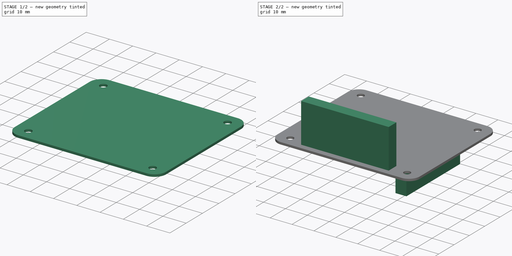
[diagram: build sequence overview — one tinted view per stage of 2, left to right]
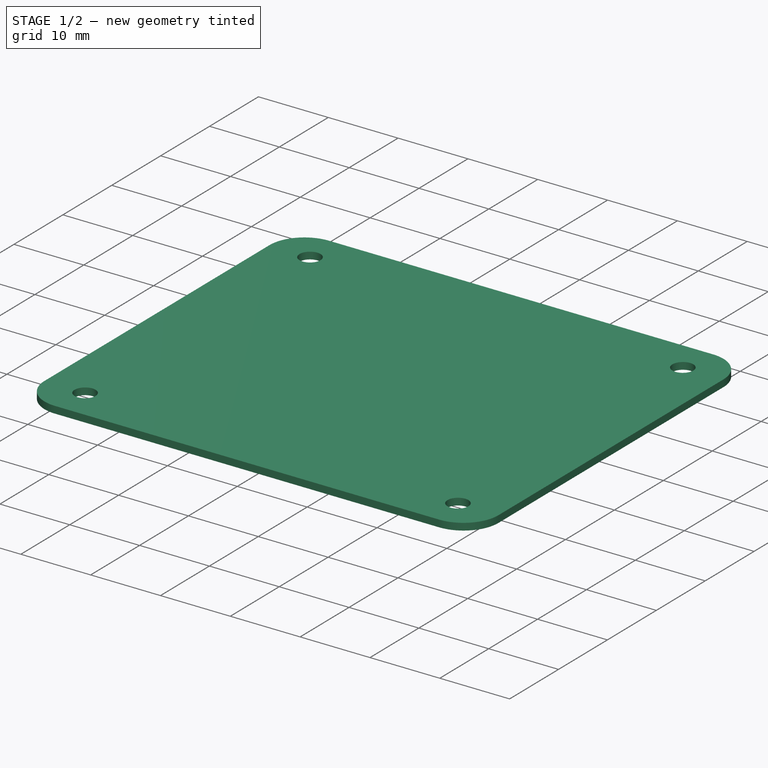
[diagram: stage 1 of 2 — iso view after this stage's code; geometry added in this stage tinted green]
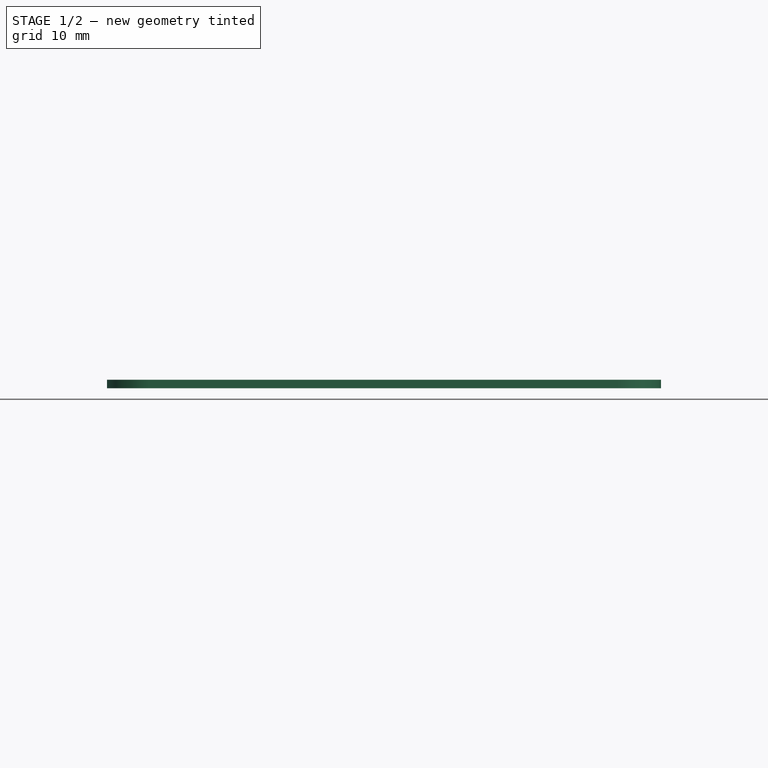
[diagram: stage 1 of 2 — front view after this stage's code; geometry added in this stage tinted green]
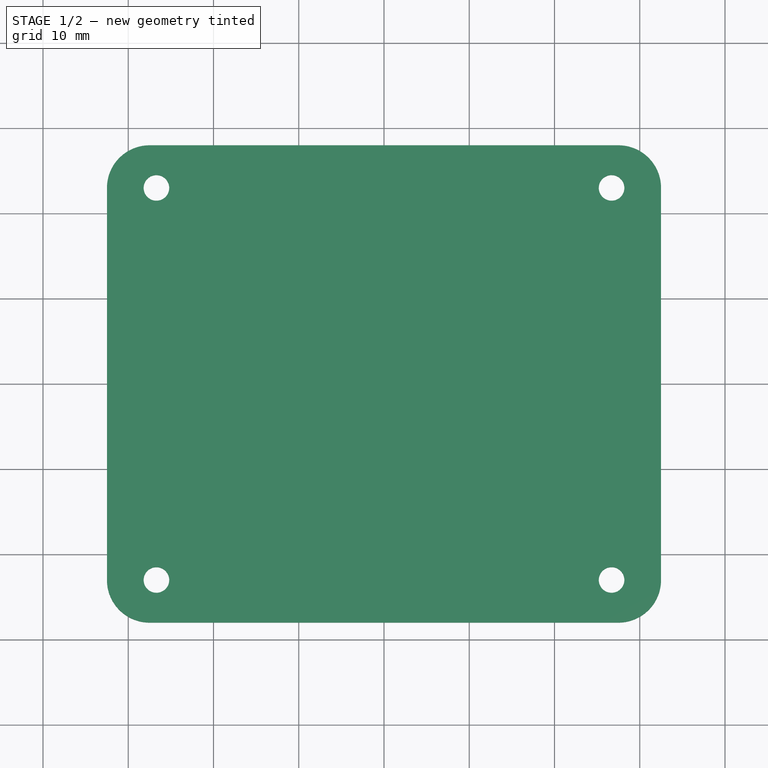
[diagram: stage 1 of 2 — top view after this stage's code; geometry added in this stage tinted green]
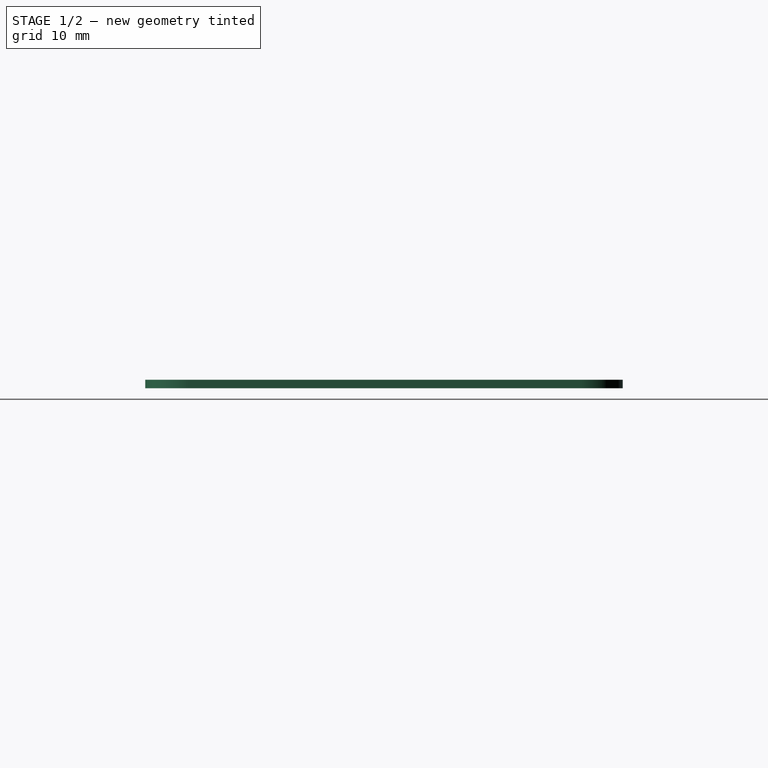
[diagram: stage 1 of 2 — right view after this stage's code; geometry added in this stage tinted green]
FCSTD DOCUMENT  (FreeCAD 1.0R39319 (Git))
Label: HAT
License: All rights reserved
LicenseURL: https://en.wikipedia.org/wiki/All_rights_reserved
objects: Sketcher::SketchObject×3, PartDesign::Pad×3, PartDesign::Fillet×1, PartDesign::Body×1
note: 19 computed .brp shape members not serialized (recipe doc carries the construction recipe); baked Part::Feature solids carry a one-line shape summary decoded from their .brp

FEATURE [Sketcher::SketchObject] Sketch
  ArcFitTolerance = 1e-06
  AttachmentSupport = -> [XY_Plane]
  FullyConstrained = true
  MakeInternals = false
  MapMode = 5
  sketch-geometry (11):
    g0: LineSegment StartX=32.5 StartY=-28 StartZ=0 EndX=32.5 EndY=28 EndZ=0
    g1: LineSegment StartX=32.5 StartY=28 StartZ=0 EndX=-32.5 EndY=28 EndZ=0
    g2: LineSegment StartX=-32.5 StartY=28 StartZ=0 EndX=-32.5 EndY=-28 EndZ=0
    g3: LineSegment StartX=-32.5 StartY=-28 StartZ=0 EndX=32.5 EndY=-28 EndZ=0
    g4: GeomPoint [constr] X=0 Y=0 Z=0
    g5: Circle CenterX=-26.6964 CenterY=23 CenterZ=0 NormalX=0 NormalY=0 NormalZ=1 AngleXU=0 Radius=1.5
    g6: Circle CenterX=-26.6964 CenterY=-23 CenterZ=0 NormalX=0 NormalY=0 NormalZ=1 AngleXU=0 Radius=1.5
    g7: Circle CenterX=26.6964 CenterY=-23 CenterZ=0 NormalX=0 NormalY=0 NormalZ=1 AngleXU=0 Radius=1.5
    g8: Circle CenterX=26.6964 CenterY=23 CenterZ=0 NormalX=0 NormalY=0 NormalZ=1 AngleXU=0 Radius=1.5
    g9: LineSegment [constr] StartX=-32.5 StartY=28 StartZ=0 EndX=32.5 EndY=-28 EndZ=0
    g10: LineSegment [constr] StartX=-32.5 StartY=-28 StartZ=0 EndX=32.5 EndY=28 EndZ=0
  constraints (25):
    c: Coincident(g0,g1)
    c: Coincident(g1,g2)
    c: Coincident(g2,g3)
    c: Coincident(g3,g0)
    c: Vertical(g0)
    c: Vertical(g2)
    c: Horizontal(g1)
    c: Horizontal(g3)
    c: Symmetric(g2,g0,g4)
    c: Coincident(g4,g-1)
    c: DistanceY(g0,g0) = 56
    c: DistanceX(g1,g1) = 65
    c: Symmetric(g5,g6,g-1)
    c: Symmetric(g7,g6,g-2)
    c: Symmetric(g7,g8,g-1)
    c: Distance(g5,g1) = 5
    c: Equal(g5,g8)
    c: Equal(g6,g5)
    c: Equal(g6,g7)
    c: Diameter(g5) = 3
    c: Coincident(g9,g1)
    c: Coincident(g9,g0)
    c: Coincident(g10,g2)
    c: Coincident(g10,g0)
    c: PointOnObject(g5,g9)
FEATURE [PartDesign::Pad] Pad
  Direction = (0,0,1)
  Length = 1
  Length2 = 10
  Profile = -> Sketch
  ReferenceAxis = -> Sketch [N_Axis]
  Refine = true
  Suppressed = false
  Type = 0
FEATURE [PartDesign::Fillet] Fillet
  Base = -> Pad [Edge8,Edge1,Edge2,Edge5]
  BaseFeature = -> Pad
  Radius = 5
  Refine = true
  SupportTransform = false
  Suppressed = false
  UseAllEdges = false
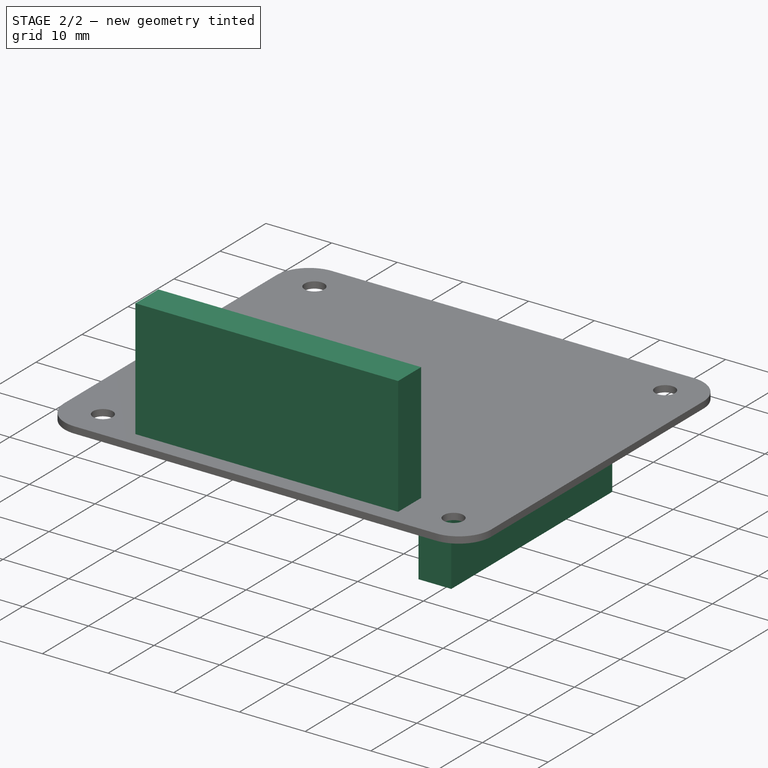
[diagram: stage 2 of 2 — iso view after this stage's code; geometry added in this stage tinted green]
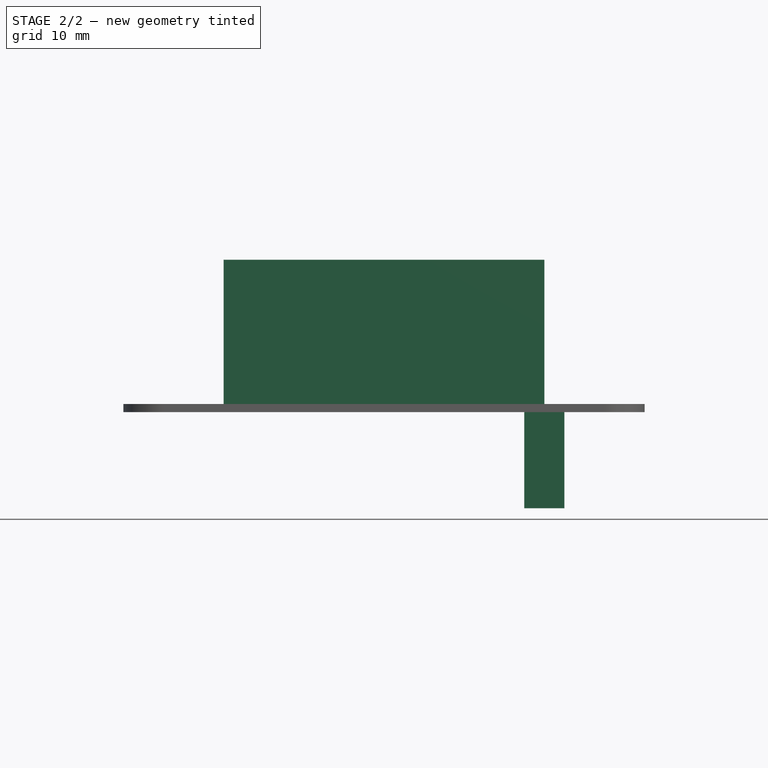
[diagram: stage 2 of 2 — front view after this stage's code; geometry added in this stage tinted green]
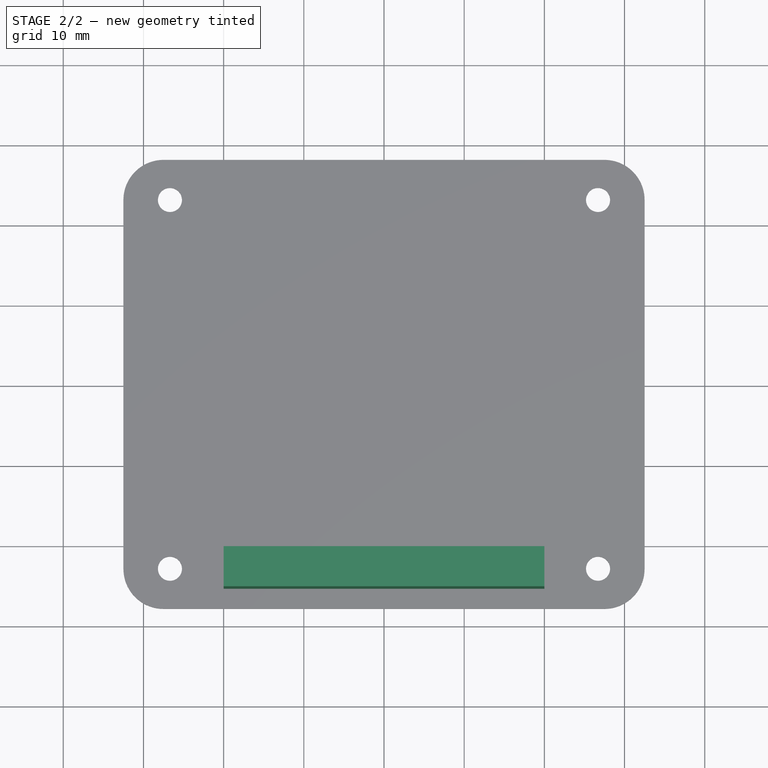
[diagram: stage 2 of 2 — top view after this stage's code; geometry added in this stage tinted green]
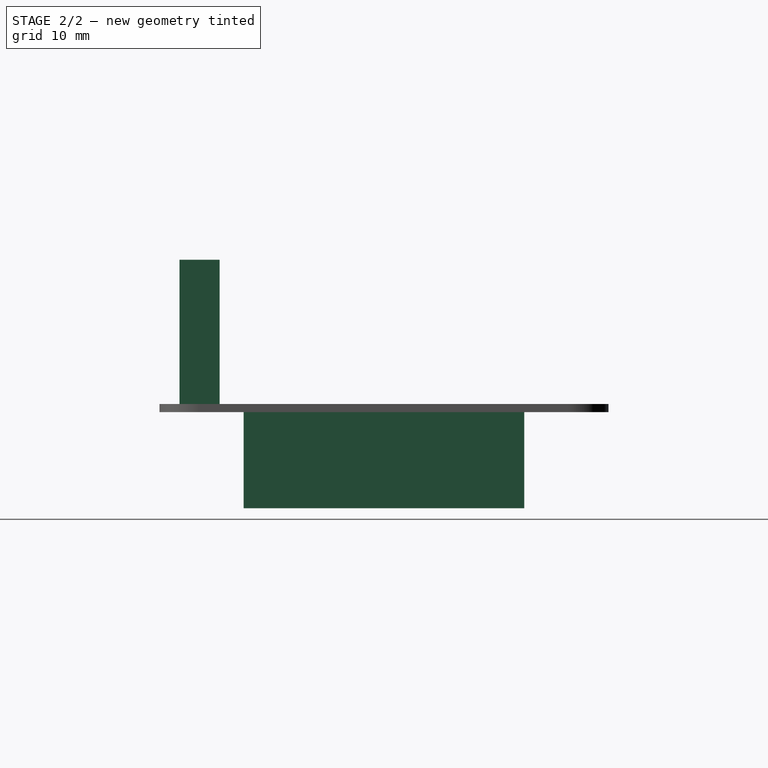
[diagram: stage 2 of 2 — right view after this stage's code; geometry added in this stage tinted green]
FEATURE [Sketcher::SketchObject] Sketch001
  ArcFitTolerance = 1e-06
  AttachmentSupport = -> [Fillet]
  ExternalGeometry = -> [Fillet]
  FullyConstrained = true
  MakeInternals = false
  MapMode = 5
  Placement = pos=(0,0,1) rot=(0,0,1;0rad)
  sketch-geometry (6):
    g0: LineSegment [constr] StartX=-26.6964 StartY=-23 StartZ=0 EndX=26.6964 EndY=-23 EndZ=0
    g1: LineSegment StartX=20 StartY=-25.5 StartZ=0 EndX=20 EndY=-20.5 EndZ=0
    g2: LineSegment StartX=20 StartY=-20.5 StartZ=0 EndX=-20 EndY=-20.5 EndZ=0
    g3: LineSegment StartX=-20 StartY=-20.5 StartZ=0 EndX=-20 EndY=-25.5 EndZ=0
    g4: LineSegment StartX=-20 StartY=-25.5 StartZ=0 EndX=20 EndY=-25.5 EndZ=0
    g5: GeomPoint [constr] X=-1e-16 Y=-23 Z=0
  constraints (14):
    c: Coincident(g0,g-3)
    c: Coincident(g0,g-4)
    c: Coincident(g1,g2)
    c: Coincident(g2,g3)
    c: Coincident(g3,g4)
    c: Coincident(g4,g1)
    c: Vertical(g1)
    c: Vertical(g3)
    c: Horizontal(g2)
    c: Horizontal(g4)
    c: Symmetric(g3,g1,g5)
    c: Symmetric(g0,g0,g5)
    c: DistanceY(g3,g3) = 5
    c: DistanceX(g2,g2) = 40
FEATURE [PartDesign::Pad] Pad001
  BaseFeature = -> Fillet
  Direction = (0,0,1)
  Length = 18
  Length2 = 10
  Profile = -> Sketch001
  ReferenceAxis = -> Sketch001 [N_Axis]
  Refine = true
  Suppressed = false
  Type = 0
FEATURE [Sketcher::SketchObject] Sketch002
  ArcFitTolerance = 1e-06
  AttachmentSupport = -> [Pad001]
  ExternalGeometry = -> [Pad001]
  FullyConstrained = true
  MakeInternals = false
  MapMode = 5
  Placement = pos=(0,0,0) rot=(1,0,0;3.14159rad)
  sketch-geometry (5):
    g0: LineSegment StartX=22.5 StartY=-17.5 StartZ=0 EndX=22.5 EndY=17.5 EndZ=0
    g1: LineSegment StartX=22.5 StartY=17.5 StartZ=0 EndX=17.5 EndY=17.5 EndZ=0
    g2: LineSegment StartX=17.5 StartY=17.5 StartZ=0 EndX=17.5 EndY=-17.5 EndZ=0
    g3: LineSegment StartX=17.5 StartY=-17.5 StartZ=0 EndX=22.5 EndY=-17.5 EndZ=0
    g4: GeomPoint [constr] X=20 Y=0 Z=0
  constraints (13):
    c: Coincident(g0,g1)
    c: Coincident(g1,g2)
    c: Coincident(g2,g3)
    c: Coincident(g3,g0)
    c: Vertical(g0)
    c: Vertical(g2)
    c: Horizontal(g1)
    c: Horizontal(g3)
    c: Symmetric(g2,g0,g4)
    c: DistanceY(g0,g0) = 35
    c: Distance(g1,g1) = 5
    c: Distance(g4,g-2) = 20
    c: PointOnObject(g4,g-1)
FEATURE [PartDesign::Pad] Pad002
  BaseFeature = -> Pad001
  Direction = (0,0,-1)
  Length = 12
  Length2 = 10
  Profile = -> Sketch002
  ReferenceAxis = -> Sketch002 [N_Axis]
  Refine = true
  Suppressed = false
  Type = 0
FEATURE [PartDesign::Body] Body  label="Corps"
  AllowCompound = false
  Group = -> [Sketch,Pad,Fillet,Sketch001,Pad001,Sketch002,Pad002]
  Origin = -> Origin
  Tip = -> Pad002
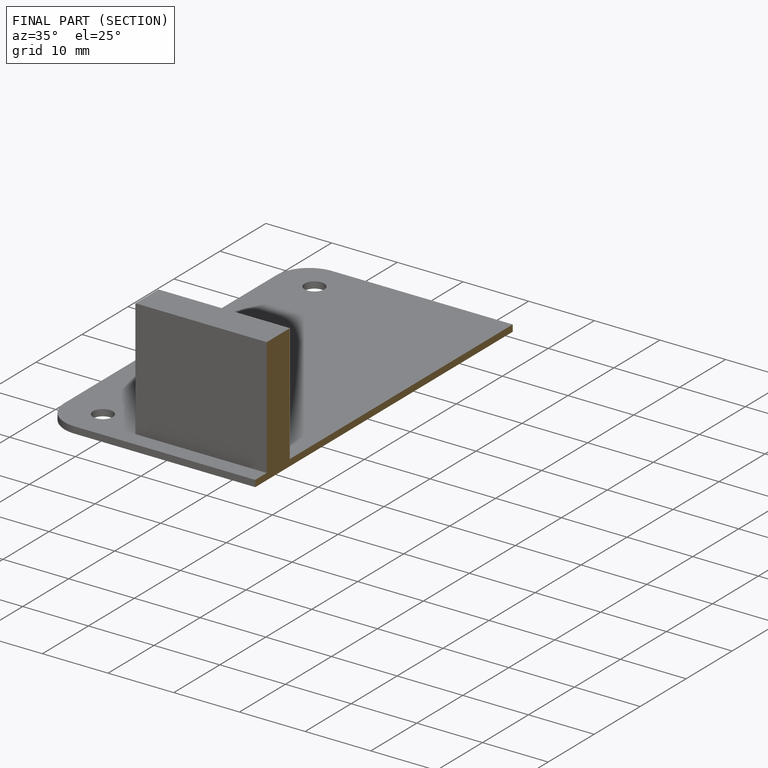
[diagram: finished part — half-section view (interior)]
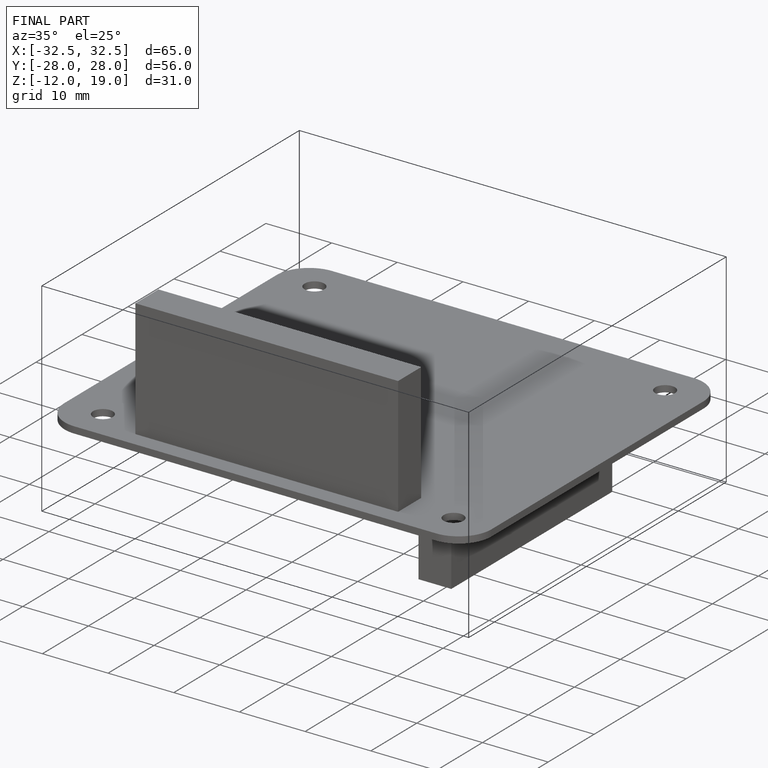
[diagram: finished part — iso view with bounding-box wireframe]
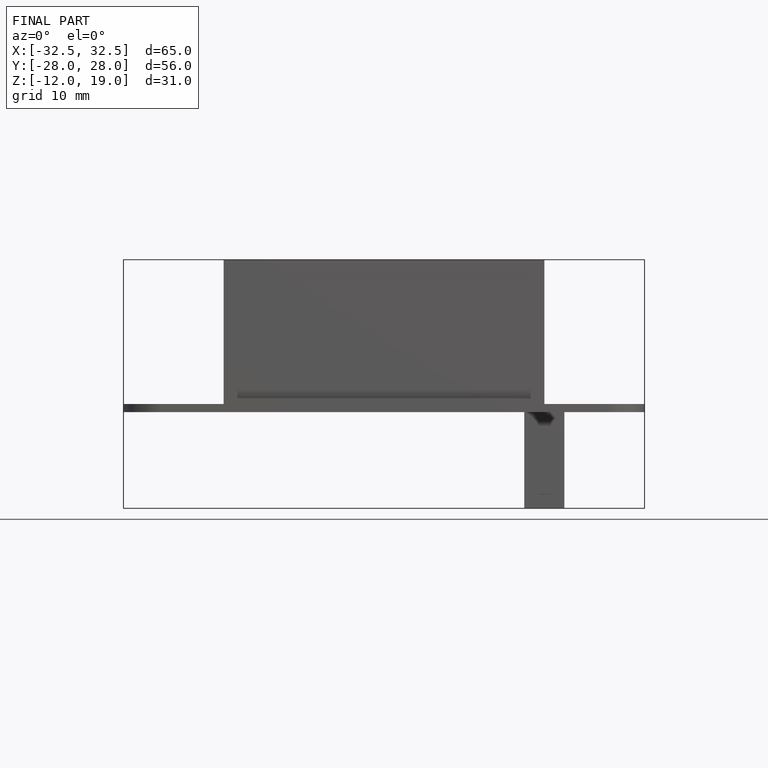
[diagram: finished part — front view with bounding-box wireframe]
